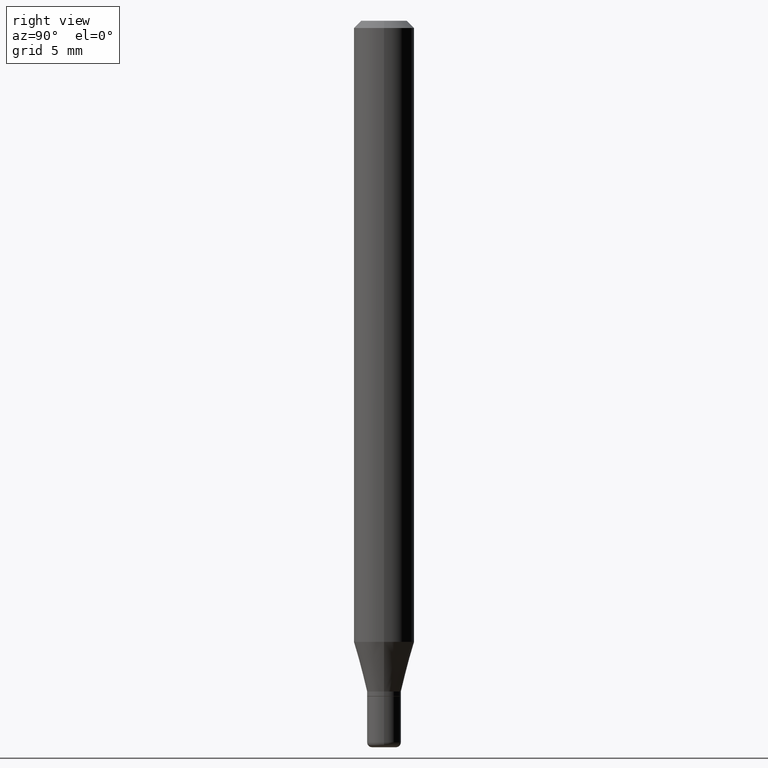
[diagram: clean part render]
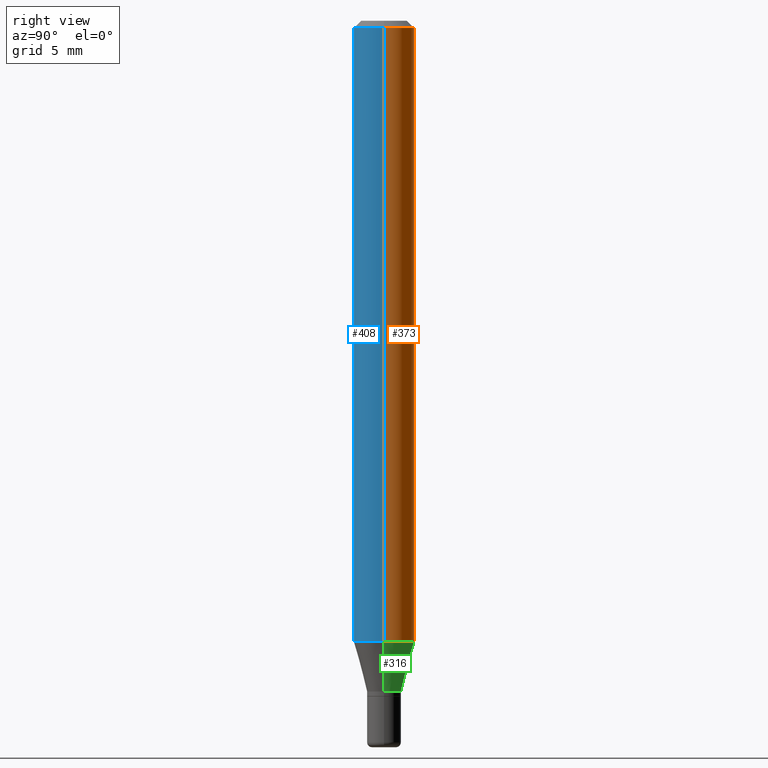
[diagram: same view with three faces highlighted in distinct colors, each labeled with its STEP entity id]
A machine part, right view with three faces highlighted in distinct colors.
Their STEP definitions:

[orange] entity #373 — the highlighted cylindrical surface (edge-blend (fillet) strip) has radius 1.5875 mm, axis along (-0, 0, 1).
#4 = CIRCLE ( 'NONE', #60, 0.06250000000000000000 ) ;
#5 = CIRCLE ( 'NONE', #93, 0.06250000000000000000 ) ;
#34 = CARTESIAN_POINT ( 'NONE',  ( -0.06250000000000000000, -4.033276836316059521E-15, -1.282368602791855938 ) ) ;
#41 = CARTESIAN_POINT ( 'NONE',  ( 3.135992416158701602E-29, -4.477366046166122926E-15, -1.282368602791855938 ) ) ;
#53 = DIRECTION ( 'NONE',  ( -2.445468806185136597E-29, 3.491481338843145583E-15, 1.000000000000000000 ) ) ;
#58 = ORIENTED_EDGE ( 'NONE', *, *, #314, .F. ) ;
#60 = AXIS2_PLACEMENT_3D ( 'NONE', #251, #53, #405 ) ;
#72 = CARTESIAN_POINT ( 'NONE',  ( 0.06250000000000000000, -4.364351673553916694E-16, 3.047610484872459871E-30 ) ) ;
#85 = CARTESIAN_POINT ( 'NONE',  ( 0.06250000000000000000, -4.913801213521515384E-15, -1.282368602791855938 ) ) ;
#93 = AXIS2_PLACEMENT_3D ( 'NONE', #41, #341, #311 ) ;
#104 = VERTEX_POINT ( 'NONE', #143 ) ;
#143 = CARTESIAN_POINT ( 'NONE',  ( 0.06250000000000000000, -4.888073874380378612E-16, -0.01499999999999970281 ) ) ;
#173 = EDGE_LOOP ( 'NONE', ( #403, #334, #58, #268 ) ) ;
#179 = VECTOR ( 'NONE', #385, 39.37007874015748143 ) ;
#183 = LINE ( 'NONE', #72, #179 ) ;
#188 = CARTESIAN_POINT ( 'NONE',  ( 0.000000000000000000, 0.000000000000000000, 0.000000000000000000 ) ) ;
#192 = DIRECTION ( 'NONE',  ( 1.000000000000000000, -6.982962677686266711E-15, 4.876176775795935793E-29 ) ) ;
#217 = EDGE_CURVE ( 'NONE', #437, #433, #380, .T. ) ;
#251 = CARTESIAN_POINT ( 'NONE',  ( 3.668203209277632395E-31, -5.237222008264614861E-17, -0.01499999999999970281 ) ) ;
#252 = CARTESIAN_POINT ( 'NONE',  ( -0.06250000000000000000, 4.440892098500626162E-16, -3.074334431409316114E-30 ) ) ;
#263 = DIRECTION ( 'NONE',  ( -2.445468806185136597E-29, 3.491481338843145583E-15, 1.000000000000000000 ) ) ;
#268 = ORIENTED_EDGE ( 'NONE', *, *, #366, .F. ) ;
#286 = VERTEX_POINT ( 'NONE', #85 ) ;
#293 = VECTOR ( 'NONE', #404, 39.37007874015748143 ) ;
#311 = DIRECTION ( 'NONE',  ( 1.000000000000000000, -6.982962677686262766E-15, 0.000000000000000000 ) ) ;
#314 = EDGE_CURVE ( 'NONE', #104, #433, #4, .T. ) ;
#334 = ORIENTED_EDGE ( 'NONE', *, *, #217, .T. ) ;
#341 = DIRECTION ( 'NONE',  ( -2.445468806185136597E-29, 3.491481338843145583E-15, 1.000000000000000000 ) ) ;
#366 = EDGE_CURVE ( 'NONE', #286, #104, #183, .T. ) ;
#373 = ADVANCED_FACE ( 'NONE', ( #374 ), #500, .T. ) ;
#374 = FACE_OUTER_BOUND ( 'NONE', #173, .T. ) ;
#380 = LINE ( 'NONE', #252, #293 ) ;
#385 = DIRECTION ( 'NONE',  ( -2.445468806185136877E-29, 3.491481338843145188E-15, 1.000000000000000000 ) ) ;
#388 = EDGE_CURVE ( 'NONE', #286, #437, #5, .T. ) ;
#403 = ORIENTED_EDGE ( 'NONE', *, *, #388, .T. ) ;
#404 = DIRECTION ( 'NONE',  ( -2.445468806185136877E-29, 3.491481338843145188E-15, 1.000000000000000000 ) ) ;
#405 = DIRECTION ( 'NONE',  ( 1.000000000000000000, -6.982962677686266711E-15, 0.000000000000000000 ) ) ;
#416 = AXIS2_PLACEMENT_3D ( 'NONE', #188, #263, #192 ) ;
#433 = VERTEX_POINT ( 'NONE', #460 ) ;
#437 = VERTEX_POINT ( 'NONE', #34 ) ;
#460 = CARTESIAN_POINT ( 'NONE',  ( -0.06250000000000000000, -1.820779923274321795E-15, -0.01499999999999970281 ) ) ;
#500 = CYLINDRICAL_SURFACE ( 'NONE', #416, 0.06250000000000000000 ) ;

[blue] entity #408 — the highlighted cylindrical surface (edge-blend (fillet) strip) has radius 1.5875 mm, axis along (-0, 0, 1).
#10 = CIRCLE ( 'NONE', #110, 0.06250000000000000000 ) ;
#34 = CARTESIAN_POINT ( 'NONE',  ( -0.06250000000000000000, -4.033276836316059521E-15, -1.282368602791855938 ) ) ;
#56 = EDGE_LOOP ( 'NONE', ( #474, #242, #400, #427 ) ) ;
#69 = DIRECTION ( 'NONE',  ( 1.000000000000000000, -6.982962677686266711E-15, 0.000000000000000000 ) ) ;
#72 = CARTESIAN_POINT ( 'NONE',  ( 0.06250000000000000000, -4.364351673553916694E-16, 3.047610484872459871E-30 ) ) ;
#85 = CARTESIAN_POINT ( 'NONE',  ( 0.06250000000000000000, -4.913801213521515384E-15, -1.282368602791855938 ) ) ;
#104 = VERTEX_POINT ( 'NONE', #143 ) ;
#110 = AXIS2_PLACEMENT_3D ( 'NONE', #303, #507, #69 ) ;
#123 = DIRECTION ( 'NONE',  ( 1.000000000000000000, -6.982962677686262766E-15, 0.000000000000000000 ) ) ;
#143 = CARTESIAN_POINT ( 'NONE',  ( 0.06250000000000000000, -4.888073874380378612E-16, -0.01499999999999970281 ) ) ;
#179 = VECTOR ( 'NONE', #385, 39.37007874015748143 ) ;
#183 = LINE ( 'NONE', #72, #179 ) ;
#199 = AXIS2_PLACEMENT_3D ( 'NONE', #446, #496, #123 ) ;
#217 = EDGE_CURVE ( 'NONE', #437, #433, #380, .T. ) ;
#222 = DIRECTION ( 'NONE',  ( 1.000000000000000000, -6.982962677686266711E-15, 4.876176775795935793E-29 ) ) ;
#242 = ORIENTED_EDGE ( 'NONE', *, *, #265, .T. ) ;
#252 = CARTESIAN_POINT ( 'NONE',  ( -0.06250000000000000000, 4.440892098500626162E-16, -3.074334431409316114E-30 ) ) ;
#265 = EDGE_CURVE ( 'NONE', #437, #286, #307, .T. ) ;
#286 = VERTEX_POINT ( 'NONE', #85 ) ;
#293 = VECTOR ( 'NONE', #404, 39.37007874015748143 ) ;
#299 = CARTESIAN_POINT ( 'NONE',  ( 0.000000000000000000, 0.000000000000000000, 0.000000000000000000 ) ) ;
#303 = CARTESIAN_POINT ( 'NONE',  ( 3.668203209277632395E-31, -5.237222008264614861E-17, -0.01499999999999970281 ) ) ;
#307 = CIRCLE ( 'NONE', #199, 0.06250000000000000000 ) ;
#332 = EDGE_CURVE ( 'NONE', #433, #104, #10, .T. ) ;
#366 = EDGE_CURVE ( 'NONE', #286, #104, #183, .T. ) ;
#380 = LINE ( 'NONE', #252, #293 ) ;
#385 = DIRECTION ( 'NONE',  ( -2.445468806185136877E-29, 3.491481338843145188E-15, 1.000000000000000000 ) ) ;
#400 = ORIENTED_EDGE ( 'NONE', *, *, #366, .T. ) ;
#404 = DIRECTION ( 'NONE',  ( -2.445468806185136877E-29, 3.491481338843145188E-15, 1.000000000000000000 ) ) ;
#408 = ADVANCED_FACE ( 'NONE', ( #511 ), #410, .T. ) ;
#410 = CYLINDRICAL_SURFACE ( 'NONE', #430, 0.06250000000000000000 ) ;
#427 = ORIENTED_EDGE ( 'NONE', *, *, #332, .F. ) ;
#430 = AXIS2_PLACEMENT_3D ( 'NONE', #299, #467, #222 ) ;
#433 = VERTEX_POINT ( 'NONE', #460 ) ;
#437 = VERTEX_POINT ( 'NONE', #34 ) ;
#446 = CARTESIAN_POINT ( 'NONE',  ( 3.135992416158701602E-29, -4.477366046166122926E-15, -1.282368602791855938 ) ) ;
#460 = CARTESIAN_POINT ( 'NONE',  ( -0.06250000000000000000, -1.820779923274321795E-15, -0.01499999999999970281 ) ) ;
#467 = DIRECTION ( 'NONE',  ( -2.445468806185136597E-29, 3.491481338843145583E-15, 1.000000000000000000 ) ) ;
#474 = ORIENTED_EDGE ( 'NONE', *, *, #217, .F. ) ;
#496 = DIRECTION ( 'NONE',  ( -2.445468806185136597E-29, 3.491481338843145583E-15, 1.000000000000000000 ) ) ;
#507 = DIRECTION ( 'NONE',  ( -2.445468806185136597E-29, 3.491481338843145583E-15, 1.000000000000000000 ) ) ;
#511 = FACE_OUTER_BOUND ( 'NONE', #56, .T. ) ;

[green] entity #316 — the highlighted conical surface has half-angle 15 deg.
#5 = CIRCLE ( 'NONE', #93, 0.06250000000000000000 ) ;
#7 = CONICAL_SURFACE ( 'NONE', #121, 0.03499999999999998251, 0.2617993877991494633 ) ;
#17 = EDGE_LOOP ( 'NONE', ( #490, #87, #372, #86 ) ) ;
#28 = CIRCLE ( 'NONE', #338, 0.03499999999999998251 ) ;
#32 = DIRECTION ( 'NONE',  ( 0.2588190451025207395, 1.565188264969626109E-15, 0.9659258262890682012 ) ) ;
#34 = CARTESIAN_POINT ( 'NONE',  ( -0.06250000000000000000, -4.033276836316059521E-15, -1.282368602791855938 ) ) ;
#41 = CARTESIAN_POINT ( 'NONE',  ( 3.135992416158701602E-29, -4.477366046166122926E-15, -1.282368602791855938 ) ) ;
#71 = EDGE_CURVE ( 'NONE', #91, #286, #260, .T. ) ;
#74 = CARTESIAN_POINT ( 'NONE',  ( 0.03499999999999998251, -5.080105348016776545E-15, -1.385000000000000009 ) ) ;
#79 = VECTOR ( 'NONE', #32, 39.37007874015748854 ) ;
#85 = CARTESIAN_POINT ( 'NONE',  ( 0.06250000000000000000, -4.913801213521515384E-15, -1.282368602791855938 ) ) ;
#86 = ORIENTED_EDGE ( 'NONE', *, *, #71, .F. ) ;
#87 = ORIENTED_EDGE ( 'NONE', *, *, #178, .T. ) ;
#91 = VERTEX_POINT ( 'NONE', #226 ) ;
#93 = AXIS2_PLACEMENT_3D ( 'NONE', #41, #341, #311 ) ;
#100 = VECTOR ( 'NONE', #414, 39.37007874015748854 ) ;
#115 = LINE ( 'NONE', #264, #100 ) ;
#121 = AXIS2_PLACEMENT_3D ( 'NONE', #248, #483, #370 ) ;
#178 = EDGE_CURVE ( 'NONE', #390, #437, #115, .T. ) ;
#197 = CARTESIAN_POINT ( 'NONE',  ( -0.03499999999999998251, -4.310144266548890801E-15, -1.385000000000000009 ) ) ;
#215 = FACE_OUTER_BOUND ( 'NONE', #17, .T. ) ;
#226 = CARTESIAN_POINT ( 'NONE',  ( 0.03499999999999998251, -5.080105348016776545E-15, -1.385000000000000009 ) ) ;
#248 = CARTESIAN_POINT ( 'NONE',  ( 3.386974296566414366E-29, -4.835701654297756579E-15, -1.385000000000000009 ) ) ;
#260 = LINE ( 'NONE', #74, #79 ) ;
#264 = CARTESIAN_POINT ( 'NONE',  ( -0.03499999999999998251, -4.587011696781721293E-15, -1.385000000000000009 ) ) ;
#286 = VERTEX_POINT ( 'NONE', #85 ) ;
#311 = DIRECTION ( 'NONE',  ( 1.000000000000000000, -6.982962677686262766E-15, 0.000000000000000000 ) ) ;
#316 = ADVANCED_FACE ( 'NONE', ( #215 ), #7, .T. ) ;
#321 = CARTESIAN_POINT ( 'NONE',  ( 3.386974296566414366E-29, -4.835701654297756579E-15, -1.385000000000000009 ) ) ;
#338 = AXIS2_PLACEMENT_3D ( 'NONE', #321, #475, #392 ) ;
#341 = DIRECTION ( 'NONE',  ( -2.445468806185136597E-29, 3.491481338843145583E-15, 1.000000000000000000 ) ) ;
#370 = DIRECTION ( 'NONE',  ( 1.000000000000000000, -6.982962677686280910E-15, 0.000000000000000000 ) ) ;
#372 = ORIENTED_EDGE ( 'NONE', *, *, #388, .F. ) ;
#388 = EDGE_CURVE ( 'NONE', #286, #437, #5, .T. ) ;
#390 = VERTEX_POINT ( 'NONE', #197 ) ;
#392 = DIRECTION ( 'NONE',  ( 1.000000000000000000, -6.982962677686280910E-15, 0.000000000000000000 ) ) ;
#414 = DIRECTION ( 'NONE',  ( -0.2588190451025207395, 5.211531920934546309E-15, 0.9659258262890682012 ) ) ;
#437 = VERTEX_POINT ( 'NONE', #34 ) ;
#475 = DIRECTION ( 'NONE',  ( -2.445468806185136597E-29, 3.491481338843145583E-15, 1.000000000000000000 ) ) ;
#483 = DIRECTION ( 'NONE',  ( -2.445468806185136597E-29, 3.491481338843145583E-15, 1.000000000000000000 ) ) ;
#484 = EDGE_CURVE ( 'NONE', #91, #390, #28, .T. ) ;
#490 = ORIENTED_EDGE ( 'NONE', *, *, #484, .T. ) ;